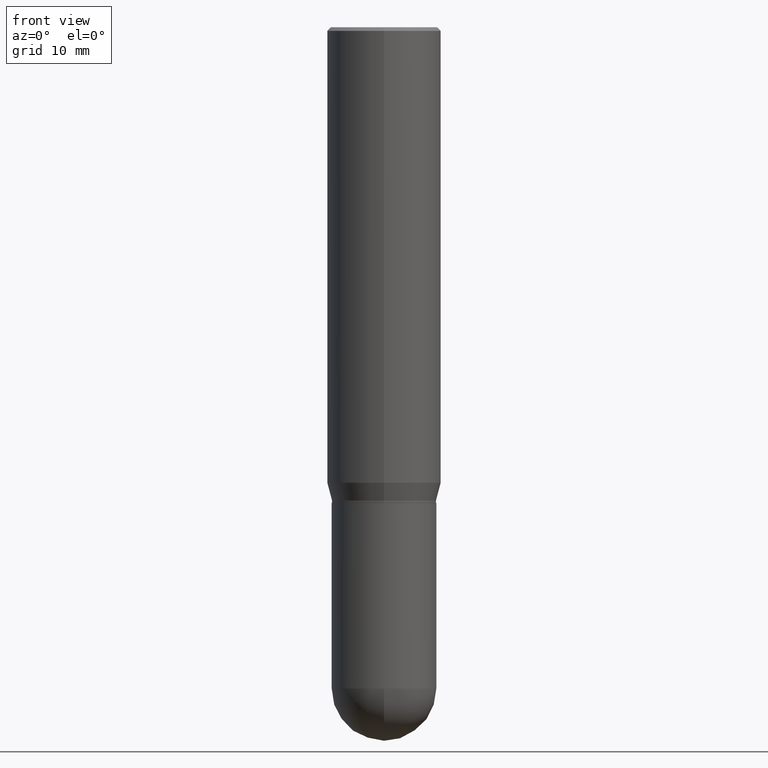
[diagram: clean part render]
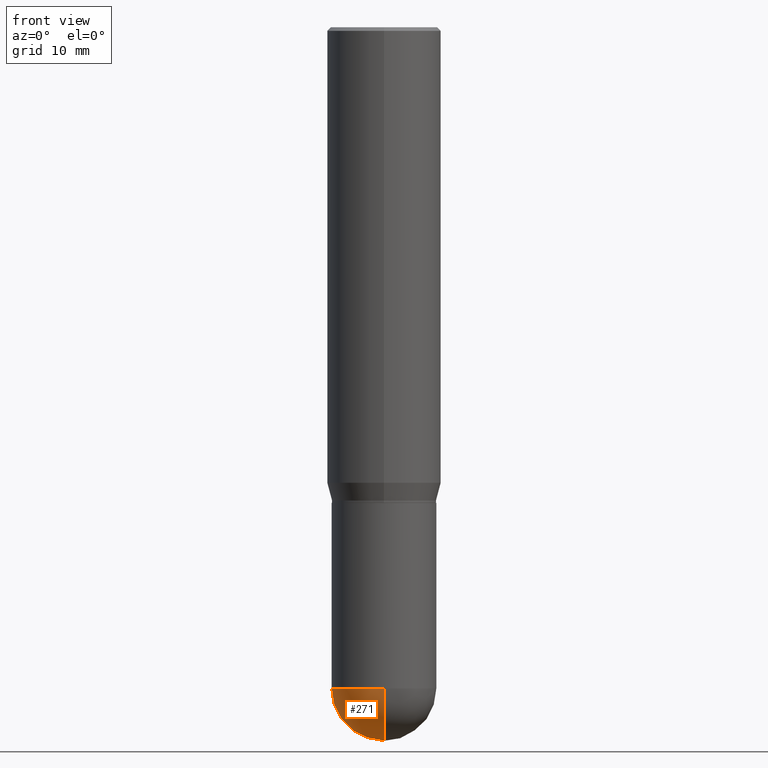
[diagram: same view with one face highlighted and labeled with its STEP entity id]
A machine part, front view. The second image highlights one B-rep face of the part: STEP entity #271.
In plain terms, the highlighted spherical surface has radius 5.5004 mm.
Its self-contained STEP definition (entity closure, byte-faithful):
#32 = VERTEX_POINT ( 'NONE', #507 ) ;
#36 = CARTESIAN_POINT ( 'NONE',  ( 6.691414020924076964E-29, -9.553565813409554172E-15, -2.736249999999999183 ) ) ;
#62 = ORIENTED_EDGE ( 'NONE', *, *, #78, .F. ) ;
#67 = DIRECTION ( 'NONE',  ( 6.982962677686265922E-15, 1.000000000000000000, -2.523064413451176940E-15 ) ) ;
#73 = VERTEX_POINT ( 'NONE', #452 ) ;
#78 = EDGE_CURVE ( 'NONE', #73, #248, #329, .T. ) ;
#79 = SPHERICAL_SURFACE ( 'NONE', #352, 0.2165500000000001035 ) ;
#83 = AXIS2_PLACEMENT_3D ( 'NONE', #36, #192, #185 ) ;
#91 = CARTESIAN_POINT ( 'NONE',  ( 1.512160567853028073E-15, 0.2165499999999904723, -2.736249999999999627 ) ) ;
#121 = ORIENTED_EDGE ( 'NONE', *, *, #217, .T. ) ;
#138 = CIRCLE ( 'NONE', #273, 0.2165500000000000480 ) ;
#185 = DIRECTION ( 'NONE',  ( 1.000000000000000000, -6.982962677686263555E-15, 0.000000000000000000 ) ) ;
#192 = DIRECTION ( 'NONE',  ( -2.445468806185136597E-29, 3.491481338843145583E-15, 1.000000000000000000 ) ) ;
#193 = EDGE_LOOP ( 'NONE', ( #62, #121, #304, #477 ) ) ;
#197 = AXIS2_PLACEMENT_3D ( 'NONE', #418, #292, #213 ) ;
#210 = DIRECTION ( 'NONE',  ( 1.000000000000000000, -6.982962677686263555E-15, 0.000000000000000000 ) ) ;
#213 = DIRECTION ( 'NONE',  ( 6.982962677686265922E-15, 1.000000000000000000, 0.000000000000000000 ) ) ;
#217 = EDGE_CURVE ( 'NONE', #73, #505, #498, .T. ) ;
#229 = CARTESIAN_POINT ( 'NONE',  ( 6.672895394931898871E-29, -9.580085539845092024E-15, -2.736249999999999627 ) ) ;
#248 = VERTEX_POINT ( 'NONE', #91 ) ;
#271 = ADVANCED_FACE ( 'NONE', ( #474 ), #79, .T. ) ;
#272 = AXIS2_PLACEMENT_3D ( 'NONE', #489, #454, #285 ) ;
#273 = AXIS2_PLACEMENT_3D ( 'NONE', #369, #414, #210 ) ;
#285 = DIRECTION ( 'NONE',  ( -7.105427357601001070E-15, -1.000000000000000000, 0.000000000000000000 ) ) ;
#292 = DIRECTION ( 'NONE',  ( 1.000000000000000000, -6.982962677686265922E-15, 4.883557194083112340E-29 ) ) ;
#304 = ORIENTED_EDGE ( 'NONE', *, *, #462, .F. ) ;
#308 = CIRCLE ( 'NONE', #83, 0.2165500000000000480 ) ;
#314 = DIRECTION ( 'NONE',  ( -1.000000000000000000, 6.982962677686265922E-15, -4.883557194083112340E-29 ) ) ;
#325 = CARTESIAN_POINT ( 'NONE',  ( -1.538680294288430240E-15, -0.2165500000000096792, -2.736249999999998295 ) ) ;
#329 = CIRCLE ( 'NONE', #197, 0.2165500000000001035 ) ;
#352 = AXIS2_PLACEMENT_3D ( 'NONE', #229, #314, #67 ) ;
#353 = EDGE_CURVE ( 'NONE', #248, #32, #138, .T. ) ;
#369 = CARTESIAN_POINT ( 'NONE',  ( 6.691414020924076964E-29, -9.553565813409554172E-15, -2.736249999999999183 ) ) ;
#414 = DIRECTION ( 'NONE',  ( -2.445468806185136597E-29, 3.491481338843145583E-15, 1.000000000000000000 ) ) ;
#418 = CARTESIAN_POINT ( 'NONE',  ( 6.672895394931898871E-29, -9.580085539845092024E-15, -2.736249999999999627 ) ) ;
#452 = CARTESIAN_POINT ( 'NONE',  ( 7.211720977907380015E-29, -1.032290596055380666E-14, -2.952799999999999869 ) ) ;
#454 = DIRECTION ( 'NONE',  ( -1.000000000000000000, 7.105427357601001070E-15, -4.926315508542082329E-29 ) ) ;
#462 = EDGE_CURVE ( 'NONE', #32, #505, #308, .T. ) ;
#474 = FACE_OUTER_BOUND ( 'NONE', #193, .T. ) ;
#477 = ORIENTED_EDGE ( 'NONE', *, *, #353, .F. ) ;
#489 = CARTESIAN_POINT ( 'NONE',  ( 6.672895394931898871E-29, -9.580085539845092024E-15, -2.736249999999999627 ) ) ;
#498 = CIRCLE ( 'NONE', #272, 0.2165500000000001035 ) ;
#505 = VERTEX_POINT ( 'NONE', #325 ) ;
#507 = CARTESIAN_POINT ( 'NONE',  ( -0.2165500000000000480, -6.674593120172645055E-15, -2.736249999999999183 ) ) ;